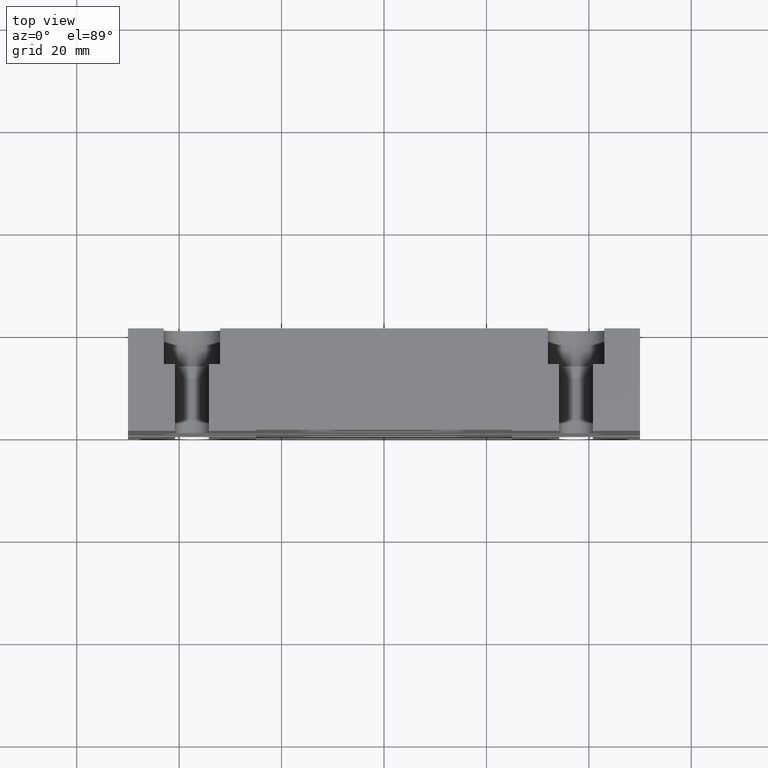
[diagram: clean part render]
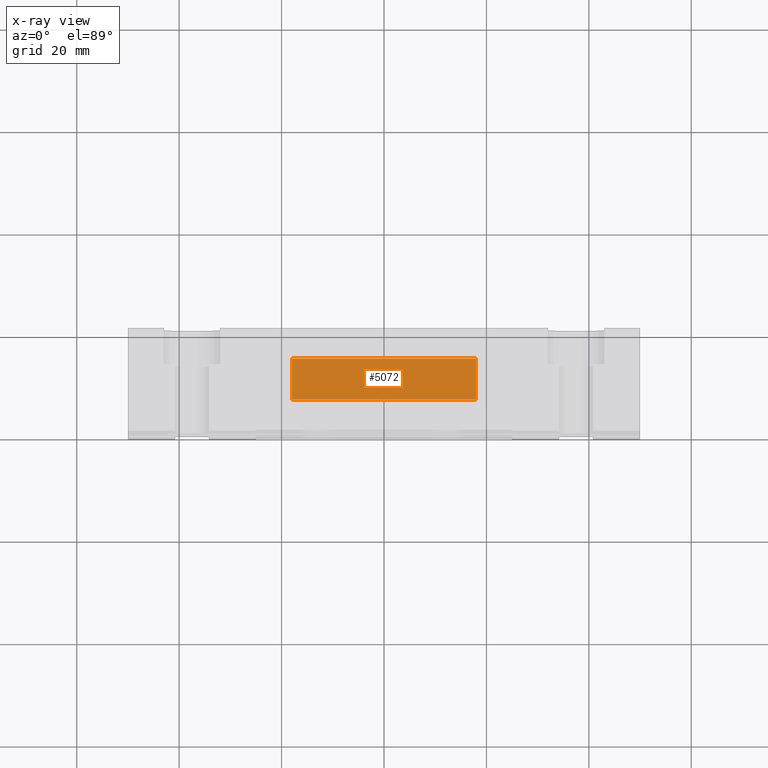
[diagram: x-ray — body ghosted, one internal face saturated and labeled with its STEP entity id]
A machine part, top view, then the same camera in x-ray: the body is ghosted and one INTERNAL B-rep face — a face not visible from any outside direction — is saturated and labeled: STEP entity #5072.
In plain terms, the highlighted planar face has unit normal (-0, -0, -1).
Its self-contained STEP definition (entity closure, byte-faithful):
#19 = VERTEX_POINT ( 'NONE', #2012 ) ;
#22 = ORIENTED_EDGE ( 'NONE', *, *, #52, .F. ) ;
#42 = CARTESIAN_POINT ( 'NONE',  ( -18.00000000000000000, 15.50000000000000400, -31.99999999999998600 ) ) ;
#52 = EDGE_CURVE ( 'NONE', #2888, #3955, #3305, .T. ) ;
#489 = LINE ( 'NONE', #4732, #4546 ) ;
#771 = VECTOR ( 'NONE', #4802, 1000.000000000000000 ) ;
#789 = CARTESIAN_POINT ( 'NONE',  ( 17.99999999999998600, 15.50000000000000400, -32.00000000000001400 ) ) ;
#791 = DIRECTION ( 'NONE',  ( 1.000000000000000000, 1.192618532565659600E-047, -6.467326192330062000E-016 ) ) ;
#890 = VERTEX_POINT ( 'NONE', #1730 ) ;
#1197 = VECTOR ( 'NONE', #5047, 1000.000000000000000 ) ;
#1360 = FACE_OUTER_BOUND ( 'NONE', #5576, .T. ) ;
#1400 = LINE ( 'NONE', #2811, #1197 ) ;
#1536 = PLANE ( 'NONE',  #4161 ) ;
#1661 = VECTOR ( 'NONE', #5762, 1000.000000000000000 ) ;
#1730 = CARTESIAN_POINT ( 'NONE',  ( -17.99999999999999600, 7.500000000000002700, -31.99999999999998600 ) ) ;
#2012 = CARTESIAN_POINT ( 'NONE',  ( -17.99999999999999600, 15.50000000000000400, -31.99999999999998600 ) ) ;
#2103 = DIRECTION ( 'NONE',  ( -2.218897729836139900E-047, -1.000000000000000000, 2.965575351820868600E-032 ) ) ;
#2479 = EDGE_CURVE ( 'NONE', #890, #3955, #1400, .T. ) ;
#2580 = DIRECTION ( 'NONE',  ( -6.467326192330062000E-016, -2.730512921981286600E-032, -1.000000000000000000 ) ) ;
#2781 = CARTESIAN_POINT ( 'NONE',  ( 17.99999999999998600, 15.50000000000000400, -32.00000000000001400 ) ) ;
#2811 = CARTESIAN_POINT ( 'NONE',  ( -18.00000000000000000, 7.500000000000002700, -31.99999999999998600 ) ) ;
#2888 = VERTEX_POINT ( 'NONE', #2781 ) ;
#2959 = EDGE_CURVE ( 'NONE', #19, #890, #489, .T. ) ;
#3305 = LINE ( 'NONE', #789, #771 ) ;
#3806 = CARTESIAN_POINT ( 'NONE',  ( 17.99999999999998600, 7.500000000000002700, -32.00000000000001400 ) ) ;
#3955 = VERTEX_POINT ( 'NONE', #3806 ) ;
#4052 = EDGE_CURVE ( 'NONE', #19, #2888, #4865, .T. ) ;
#4161 = AXIS2_PLACEMENT_3D ( 'NONE', #4379, #2580, #791 ) ;
#4184 = ORIENTED_EDGE ( 'NONE', *, *, #2959, .T. ) ;
#4379 = CARTESIAN_POINT ( 'NONE',  ( -18.00000000000000000, 15.50000000000000400, -31.99999999999998600 ) ) ;
#4546 = VECTOR ( 'NONE', #2103, 1000.000000000000000 ) ;
#4732 = CARTESIAN_POINT ( 'NONE',  ( -17.99999999999999600, 15.50000000000000400, -31.99999999999998600 ) ) ;
#4802 = DIRECTION ( 'NONE',  ( -2.218897729836139900E-047, -1.000000000000000000, 2.965575351820868600E-032 ) ) ;
#4865 = LINE ( 'NONE', #42, #1661 ) ;
#5047 = DIRECTION ( 'NONE',  ( 1.000000000000000000, 1.192618532565659600E-047, -6.467326192330062000E-016 ) ) ;
#5072 = ADVANCED_FACE ( 'NONE', ( #1360 ), #1536, .F. ) ;
#5266 = ORIENTED_EDGE ( 'NONE', *, *, #4052, .F. ) ;
#5366 = ORIENTED_EDGE ( 'NONE', *, *, #2479, .T. ) ;
#5576 = EDGE_LOOP ( 'NONE', ( #5366, #22, #5266, #4184 ) ) ;
#5762 = DIRECTION ( 'NONE',  ( 1.000000000000000000, 1.192618532565659600E-047, -6.467326192330062000E-016 ) ) ;